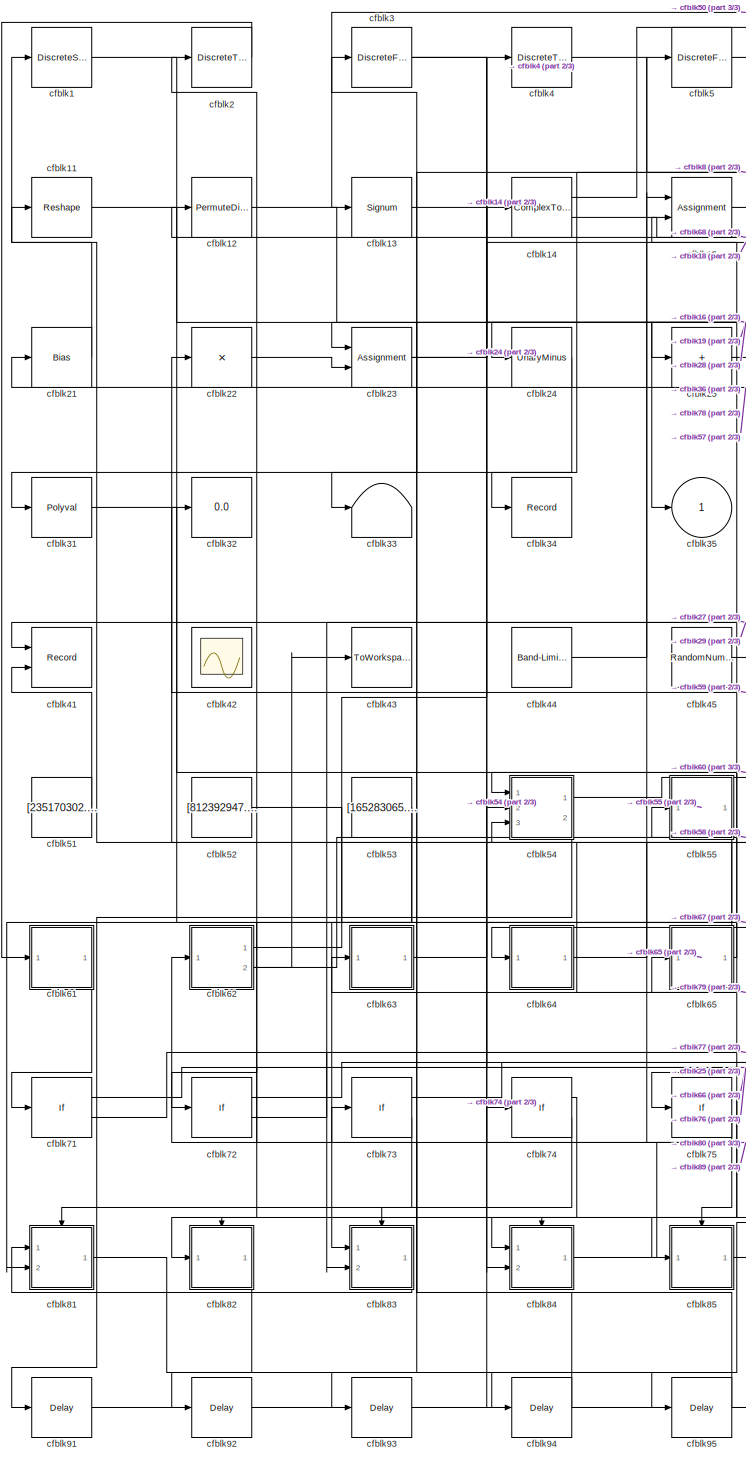
[diagram: root canvas - part 1/3, left side, full height]
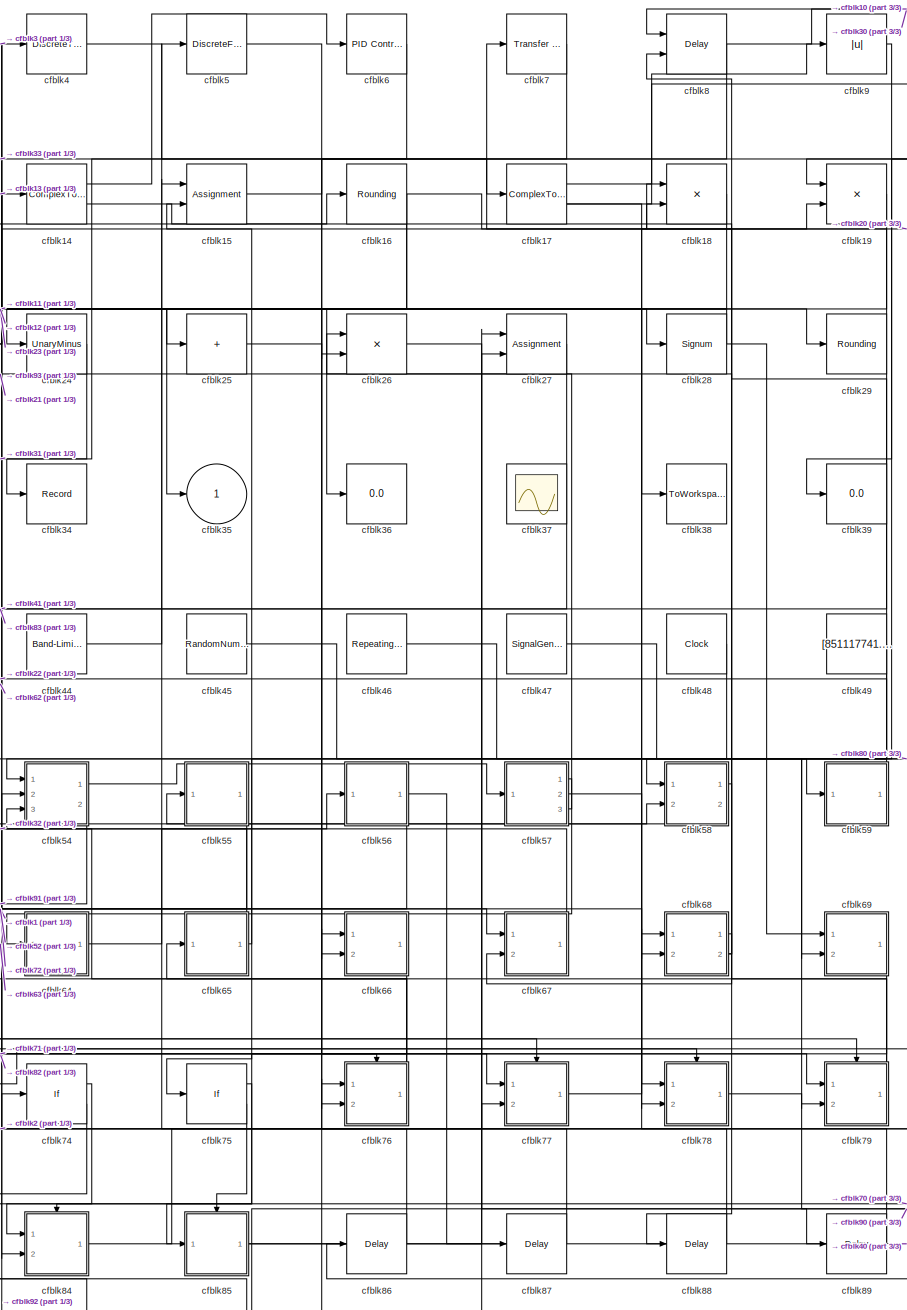
[diagram: root canvas - part 2/3, center side, full height]
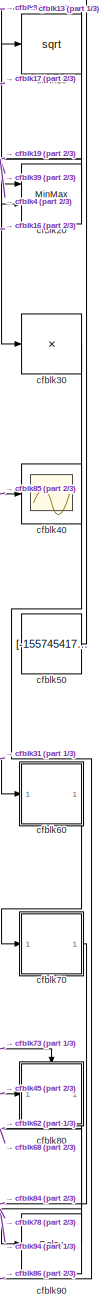
[diagram: root canvas - part 3/3, right side, full height]
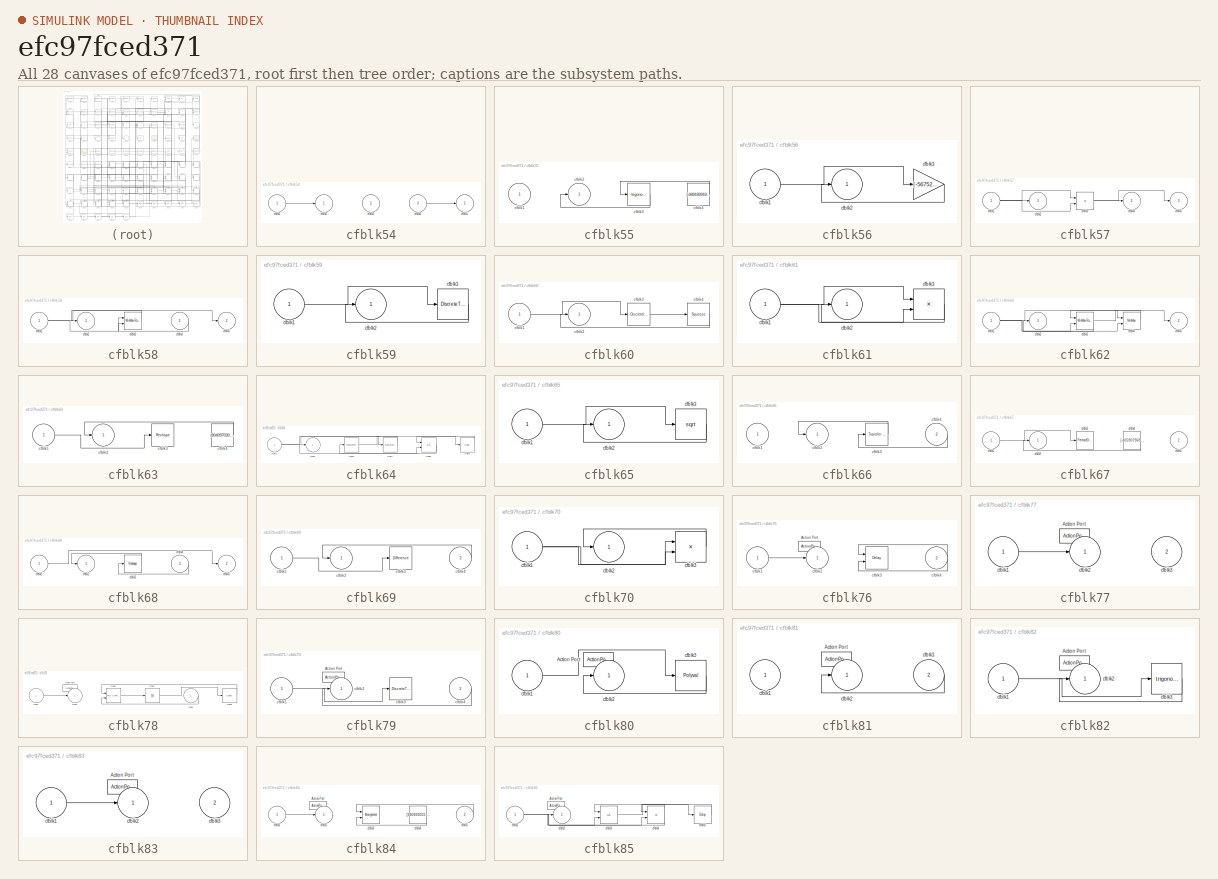
[diagram: thumbnail index - all 28 canvases of the model, root first then tree order]
MODEL slx_efc97fced371
KIND model
CONFIG AbsTol = auto
CONFIG EnableMultiTasking = off
CONFIG FixedStep = auto
CONFIG MaxStep = auto
CONFIG MinStep = auto
CONFIG RelTol = 1e-3
CONFIG SampleTimeConstraint = Unconstrained
CONFIG SolverName = VariableStepAuto
CONFIG StartTime = 0.0
CONFIG StopTime = 10.0
BLOCK [DiscreteStateSpace] cfblk1
BLOCK [Sqrt] cfblk10
BLOCK [Reshape] cfblk11
  Ports = [1, 1]
BLOCK [PermuteDimensions] cfblk12
BLOCK [Signum] cfblk13
BLOCK [ComplexToRealImag] cfblk14
  Ports = [1, 2]
BLOCK [Assignment] cfblk15
  DiagnosticForDimensions = Warning
  IndexOptions = Index vector (dialog)
  Indices = 1
  OutputSizes = 1
  Ports = [2, 1]
BLOCK [Rounding] cfblk16
BLOCK [ComplexToMagnitudeAngle] cfblk17
  Ports = [1, 2]
BLOCK [Product] cfblk18
  Ports = [2, 1]
BLOCK [Product] cfblk19
  Ports = [2, 1]
BLOCK [DiscreteTransferFcn] cfblk2
  InputPortMap = u0
  Ports = [1, 1]
  SampleTime = 1
BLOCK [MinMax] cfblk20
  Function = max
  Inputs = 2
  Ports = [2, 1]
BLOCK [Bias] cfblk21
  Bias = [805457734.016898]
  SaturateOnIntegerOverflow = off
BLOCK [Product] cfblk22
  Inputs = *
  Ports = [1, 1]
BLOCK [Assignment] cfblk23
  DiagnosticForDimensions = Warning
  IndexOptions = Index vector (dialog)
  Indices = 1
  OutputSizes = 1
  Ports = [2, 1]
BLOCK [UnaryMinus] cfblk24
BLOCK [Sum] cfblk25
  IconShape = rectangular
  Inputs = +
  Ports = [1, 1]
BLOCK [Product] cfblk26
  Inputs = **
  Ports = [2, 1]
BLOCK [Assignment] cfblk27
  DiagnosticForDimensions = Warning
  IndexOptions = Index vector (dialog)
  Indices = 1
  OutputSizes = 1
  Ports = [2, 1]
BLOCK [Signum] cfblk28
BLOCK [Rounding] cfblk29
BLOCK [DiscreteFir] cfblk3
  InputPortMap = u0
  OutputPortMap = o0
  Ports = [1, 1]
  SampleTime = 1
BLOCK [Product] cfblk30
  Inputs = *
  Ports = [1, 1]
BLOCK [Polyval] cfblk31
  Coefs = [ +2.081618890e-019, -1.441693666e-014, +4.719686976e-010, -8.536869453e-006, +1.621573104e-001, -8.087801117e+001 ]
BLOCK [Display] cfblk32
  Decimation = 1
  Ports = [1]
BLOCK [Terminator] cfblk33
BLOCK [Record] cfblk34
  FileSettingsInternal = {"entries":[{"content":{"excelSettings":{"content":{},"type":"Streamout.ExcelSettings"}},"type":"Streamout.FileSettingStorage","uuid":"10b3a829-3b43-40bf-bdec-2873be39b544"}],"packageUris":["http://schema.mathworks.com/mf0/streamout_blocks/R2020a"],"version":"1.0"}
  Ports = [1]
  SignalsInternal = {"entries":[{"content":{"signals":[{"content":{"blockPath":["sampleModel125/cfblk34"],"channel":[],"dimensions":[1],"domain":"sampleModel125/cfblk34","lineColor":"#4dbeee","plots":[1],"port":1,"sid":[""],"signalID":4407,"signalName":"cfblk6"},"type":"RecordBlkView.Signal","uuid":"dde6bba3-9d79-403d-9fee-fe8c637f291d"}]},"type":"RecordBlkView.InputSignals","uuid":"595af941-56f7-477e-9f25-0f9a9aec73...<+96ch>
  VisualizationBindings = {"sparklinesplugin":{"info":[{"bindingParametersList":[],"subplotID":1}]}}
BLOCK [Outport] cfblk35
BLOCK [Display] cfblk36
  Decimation = 1
  Ports = [1]
BLOCK [Scope] cfblk37
  Floating = on
  NumInputPorts = 1
  Ports = []
BLOCK [ToWorkspace] cfblk38
  FixptAsFi = on
  MaxDataPoints = inf
  Ports = [1]
  SampleTime = -1
  SaveFormat = Timeseries
  VariableName = kpebruq
BLOCK [Display] cfblk39
  Decimation = 1
  Ports = [1]
BLOCK [DiscreteTransferFcn] cfblk4
  InputPortMap = u0
  Ports = [1, 1]
  SampleTime = 1
BLOCK [Scope] cfblk40
  Floating = off
  NumInputPorts = 1
  Ports = [1]
BLOCK [Record] cfblk41
  CompatibilityTag = XY
  FileSettingsInternal = {"entries":[{"content":{"excelSettings":{"content":{},"type":"Streamout.ExcelSettings"}},"type":"Streamout.FileSettingStorage","uuid":"c1591aa4-c251-4cb9-a9b5-7e1959374f39"}],"packageUris":["http://schema.mathworks.com/mf0/streamout_blocks/R2020a"],"version":"1.0"}
  Layout = [1 1]
  Ports = [2]
  SignalsInternal = {"entries":[{"content":{"signals":[{"content":{"blockPath":["sampleModel125/cfblk41"],"channel":[],"dimensions":[1],"domain":"sampleModel125/cfblk41","lineColor":"#a2142f","plots":[1],"port":1,"sid":[""],"signalID":4411,"signalName":"cfblk27"},"type":"RecordBlkView.Signal","uuid":"4e167d94-f253-4071-9bb9-3a192c00a069"},{"content":{"blockPath":["sampleModel125/cfblk41"],"channel":[],"dimensions":[1...<+383ch>
  VisualizationBindings = {"xyplotplugin":{"info":[{"series":[{"bindingParametersList":[{"parameter":"X-Axis","signalID":4411,"signalName":"cfblk27"},{"parameter":"Y-Axis","signalID":4415,"signalName":"cfblk51"}],"seriesID":13289}],"subplotID":1}]}}
BLOCK [Scope] cfblk42
  Floating = on
  NumInputPorts = 1
  Ports = []
BLOCK [ToWorkspace] cfblk43
  FixptAsFi = on
  MaxDataPoints = inf
  Ports = [1]
  SampleTime = -1
  SaveFormat = Timeseries
  VariableName = qmubaad
BLOCK [Reference] cfblk44  REF=simulink/Sources/Band-Limited
White Noise
  Ports = [0, 1]
  SourceBlock = simulink/Sources/Band-Limited\nWhite Noise
  SourceProductBaseCode = SL
  SourceType = Band-Limited White Noise.
BLOCK [RandomNumber] cfblk45
  Mean = [-77643.430435]
  SampleTime = 0.1
  Seed = [977465673.000000]
  Variance = [89785.458999]
BLOCK [Reference] cfblk46  REF=simulink/Sources/Repeating
Sequence
Interpolated
  Ports = [0, 1]
  SourceBlock = simulink/Sources/Repeating\nSequence\nInterpolated
  SourceProductBaseCode = SL
  SourceType = Repeating Sequence Interpolated
BLOCK [SignalGenerator] cfblk47
  Amplitude = [910429593.160431]
  Ports = [0, 1]
BLOCK [Clock] cfblk48
BLOCK [Constant] cfblk49
  SampleTime = 1
  Value = [851117741.386390]
BLOCK [DiscreteFir] cfblk5
  InputPortMap = u0
  OutputPortMap = o0
  Ports = [1, 1]
  SampleTime = 1
BLOCK [Constant] cfblk50
  SampleTime = 1
  Value = [-155745417.798116]
BLOCK [Constant] cfblk51
  SampleTime = 1
  Value = [235170302.838405]
BLOCK [Constant] cfblk52
  SampleTime = 1
  Value = [812392947.582195]
BLOCK [Constant] cfblk53
  SampleTime = 1
  Value = [165283065.150022]
BLOCK [SubSystem] cfblk54
  Ports = [3, 2]
  RequestExecContextInheritance = off
BLOCK [Inport] cfblk54/cfblk1
BLOCK [Outport] cfblk54/cfblk2
BLOCK [Inport] cfblk54/cfblk3
  Port = 2
BLOCK [Inport] cfblk54/cfblk4
  Port = 3
BLOCK [Outport] cfblk54/cfblk5
  Port = 2
BLOCK [SubSystem] cfblk55
  Ports = [1, 1]
  RequestExecContextInheritance = off
BLOCK [Inport] cfblk55/cfblk1
BLOCK [Outport] cfblk55/cfblk2
BLOCK [Trigonometry] cfblk55/cfblk3
  Ports = [1, 1]
BLOCK [Constant] cfblk55/cfblk4
  SampleTime = 1
  Value = [-689189918.602560]
BLOCK [SubSystem] cfblk56
  Ports = [1, 1]
  RequestExecContextInheritance = off
BLOCK [Inport] cfblk56/cfblk1
BLOCK [Outport] cfblk56/cfblk2
BLOCK [Gain] cfblk56/cfblk3
  Gain = [-567529221.221164]
BLOCK [SubSystem] cfblk57
  Ports = [1, 3]
  RequestExecContextInheritance = off
BLOCK [Inport] cfblk57/cfblk1
BLOCK [Outport] cfblk57/cfblk2
BLOCK [Product] cfblk57/cfblk3
  Ports = [2, 1]
BLOCK [Outport] cfblk57/cfblk4
  Port = 2
BLOCK [Outport] cfblk57/cfblk5
  Port = 3
BLOCK [SubSystem] cfblk58
  Ports = [2, 2]
  RequestExecContextInheritance = off
BLOCK [Inport] cfblk58/cfblk1
BLOCK [Outport] cfblk58/cfblk2
BLOCK [Reference] cfblk58/cfblk3  REF=simulink/Math
Operations/MinMax
Running
Resettable
  Ports = [2, 1]
  SourceBlock = simulink/Math\nOperations/MinMax\nRunning\nResettable
  SourceProductBaseCode = SL
  SourceType = MinMax Running Resettable
BLOCK [Inport] cfblk58/cfblk4
  Port = 2
BLOCK [Outport] cfblk58/cfblk5
  Port = 2
BLOCK [SubSystem] cfblk59
  Ports = [1, 1]
  RequestExecContextInheritance = off
BLOCK [Inport] cfblk59/cfblk1
BLOCK [Outport] cfblk59/cfblk2
BLOCK [DiscreteTransferFcn] cfblk59/cfblk3
  InputPortMap = u0
  Ports = [1, 1]
  SampleTime = 1
BLOCK [Reference] cfblk6  REF=slpidlib/PID Controller
  Ports = [1, 1]
  SourceBlock = slpidlib/PID Controller
  SourceProductBaseCode = SL
  SourceType = PID 1dof
BLOCK [SubSystem] cfblk60
  Ports = [1, 1]
  RequestExecContextInheritance = off
BLOCK [Inport] cfblk60/cfblk1
BLOCK [Outport] cfblk60/cfblk2
BLOCK [DiscreteIntegrator] cfblk60/cfblk3
  ICPrevOutput = DiscIntNeverNeededParam
  ICPrevScaledInput = DiscIntNeverNeededParam
  InitialConditionSetting = Auto
  Ports = [1, 1]
BLOCK [Squeeze] cfblk60/cfblk4
BLOCK [SubSystem] cfblk61
  Ports = [1, 1]
  RequestExecContextInheritance = off
BLOCK [Inport] cfblk61/cfblk1
BLOCK [Outport] cfblk61/cfblk2
BLOCK [Product] cfblk61/cfblk3
  Inputs = **
  Ports = [2, 1]
BLOCK [SubSystem] cfblk62
  Ports = [1, 2]
  RequestExecContextInheritance = off
BLOCK [Inport] cfblk62/cfblk1
BLOCK [Outport] cfblk62/cfblk2
BLOCK [Reference] cfblk62/cfblk3  REF=simulink/Math
Operations/MinMax
Running
Resettable
  Ports = [2, 1]
  SourceBlock = simulink/Math\nOperations/MinMax\nRunning\nResettable
  SourceProductBaseCode = SL
  SourceType = MinMax Running Resettable
BLOCK [MinMax] cfblk62/cfblk4
  Inputs = 2
  Ports = [2, 1]
BLOCK [Outport] cfblk62/cfblk5
  Port = 2
BLOCK [SubSystem] cfblk63
  Ports = [1, 1]
  RequestExecContextInheritance = off
BLOCK [Inport] cfblk63/cfblk1
BLOCK [Outport] cfblk63/cfblk2
BLOCK [Reshape] cfblk63/cfblk3
  Ports = [1, 1]
BLOCK [Constant] cfblk63/cfblk4
  SampleTime = 1
  Value = [804097030.204221]
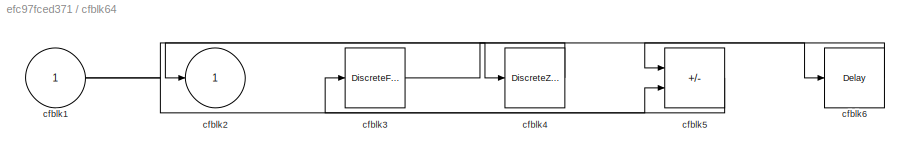
BLOCK [SubSystem] cfblk64
  Ports = [1, 1]
  RequestExecContextInheritance = off
BLOCK [Inport] cfblk64/cfblk1
BLOCK [Outport] cfblk64/cfblk2
BLOCK [DiscreteFilter] cfblk64/cfblk3
  InputPortMap = u0
  Ports = [1, 1]
  SampleTime = 1
BLOCK [DiscreteZeroPole] cfblk64/cfblk4
  Gain = 1
  Poles = [0 0.5]
BLOCK [Sum] cfblk64/cfblk5
  IconShape = rectangular
  Inputs = +-
  Ports = [2, 1]
BLOCK [Delay] cfblk64/cfblk6
  InputPortMap = u0
  Ports = [1, 1]
  SampleTime = 1
BLOCK [SubSystem] cfblk65
  Ports = [1, 1]
  RequestExecContextInheritance = off
BLOCK [Inport] cfblk65/cfblk1
BLOCK [Outport] cfblk65/cfblk2
BLOCK [Sqrt] cfblk65/cfblk3
BLOCK [SubSystem] cfblk66
  Ports = [2, 1]
  RequestExecContextInheritance = off
BLOCK [Inport] cfblk66/cfblk1
BLOCK [Outport] cfblk66/cfblk2
BLOCK [Reference] cfblk66/cfblk3  REF=simulink/Discrete/Transfer Fcn
Lead or Lag
  Ports = [1, 1]
  SourceBlock = simulink/Discrete/Transfer Fcn\nLead or Lag
  SourceProductBaseCode = SL
  SourceType = Lead or Lag Compensator
BLOCK [Inport] cfblk66/cfblk4
  Port = 2
BLOCK [SubSystem] cfblk67
  Ports = [2, 1]
  RequestExecContextInheritance = off
BLOCK [Inport] cfblk67/cfblk1
BLOCK [Outport] cfblk67/cfblk2
BLOCK [PermuteDimensions] cfblk67/cfblk3
BLOCK [Constant] cfblk67/cfblk4
  SampleTime = 1
  Value = [-405907969.061184]
BLOCK [Inport] cfblk67/cfblk5
  Port = 2
BLOCK [SubSystem] cfblk68
  Ports = [2, 2]
  RequestExecContextInheritance = off
BLOCK [Inport] cfblk68/cfblk1
BLOCK [Outport] cfblk68/cfblk2
BLOCK [Reshape] cfblk68/cfblk3
  Ports = [1, 1]
BLOCK [Inport] cfblk68/cfblk4
  Port = 2
BLOCK [Outport] cfblk68/cfblk5
  Port = 2
BLOCK [SubSystem] cfblk69
  Ports = [2, 1]
  RequestExecContextInheritance = off
BLOCK [Inport] cfblk69/cfblk1
BLOCK [Outport] cfblk69/cfblk2
BLOCK [Reference] cfblk69/cfblk3  REF=simulink/Discrete/Difference
  Ports = [1, 1]
  SourceBlock = simulink/Discrete/Difference
  SourceProductBaseCode = SL
  SourceType = Difference
BLOCK [Inport] cfblk69/cfblk4
  Port = 2
BLOCK [Reference] cfblk7  REF=simulink/Discrete/Transfer Fcn
First Order
  Ports = [1, 1]
  SourceBlock = simulink/Discrete/Transfer Fcn\nFirst Order
  SourceProductBaseCode = SL
  SourceType = First Order Transfer Fcn
BLOCK [SubSystem] cfblk70
  Ports = [1, 1]
  RequestExecContextInheritance = off
BLOCK [Inport] cfblk70/cfblk1
BLOCK [Outport] cfblk70/cfblk2
BLOCK [Product] cfblk70/cfblk3
  Inputs = **
  Ports = [2, 1]
BLOCK [If] cfblk71
  IfExpression = u1 >= 0
  Ports = [1, 2]
  SampleTime = 1
BLOCK [If] cfblk72
  IfExpression = u1 >= 0
  Ports = [1, 2]
  SampleTime = 1
BLOCK [If] cfblk73
  IfExpression = u1 >= 0
  Ports = [1, 2]
  SampleTime = 1
BLOCK [If] cfblk74
  IfExpression = u1 >= 0
  Ports = [1, 2]
  SampleTime = 1
BLOCK [If] cfblk75
  IfExpression = u1 >= 0
  Ports = [1, 2]
  SampleTime = 1
BLOCK [SubSystem] cfblk76
  Ports = [2, 1, 0, 0, 0, 0, 0, 1]
  RequestExecContextInheritance = off
  TreatAsAtomicUnit = on
BLOCK [ActionPort] cfblk76/Action Port
  ActionPortLabel = if(u1 >= 0)
BLOCK [Inport] cfblk76/cfblk1
BLOCK [Outport] cfblk76/cfblk2
BLOCK [Delay] cfblk76/cfblk3
  InputPortMap = u0,e6
  Ports = [2, 1]
  ShowEnablePort = on
BLOCK [Inport] cfblk76/cfblk4
  Port = 2
BLOCK [SubSystem] cfblk77
  Ports = [2, 1, 0, 0, 0, 0, 0, 1]
  RequestExecContextInheritance = off
  TreatAsAtomicUnit = on
BLOCK [ActionPort] cfblk77/Action Port
  ActionPortLabel = else
BLOCK [Inport] cfblk77/cfblk1
BLOCK [Outport] cfblk77/cfblk2
BLOCK [Inport] cfblk77/cfblk3
  Port = 2
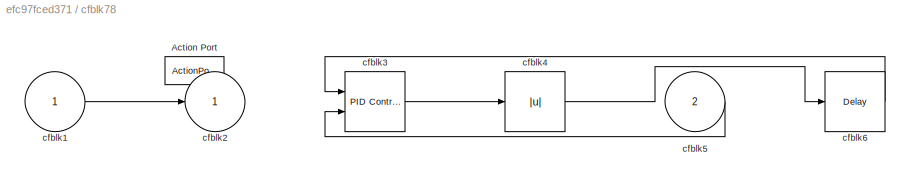
BLOCK [SubSystem] cfblk78
  Ports = [2, 1, 0, 0, 0, 0, 0, 1]
  RequestExecContextInheritance = off
  TreatAsAtomicUnit = on
BLOCK [ActionPort] cfblk78/Action Port
  ActionPortLabel = if(u1 >= 0)
BLOCK [Inport] cfblk78/cfblk1
BLOCK [Outport] cfblk78/cfblk2
BLOCK [Reference] cfblk78/cfblk3  REF=slpidlib/PID Controller (2DOF)
  Ports = [2, 1]
  SourceBlock = slpidlib/PID Controller (2DOF)
  SourceProductBaseCode = SL
  SourceType = PID 2dof
BLOCK [Abs] cfblk78/cfblk4
  SaturateOnIntegerOverflow = off
BLOCK [Inport] cfblk78/cfblk5
  Port = 2
BLOCK [Delay] cfblk78/cfblk6
  InputPortMap = u0
  Ports = [1, 1]
BLOCK [SubSystem] cfblk79
  Ports = [2, 1, 0, 0, 0, 0, 0, 1]
  RequestExecContextInheritance = off
  TreatAsAtomicUnit = on
BLOCK [ActionPort] cfblk79/Action Port
  ActionPortLabel = else
BLOCK [Inport] cfblk79/cfblk1
BLOCK [Outport] cfblk79/cfblk2
BLOCK [DiscreteTransferFcn] cfblk79/cfblk3
  InputPortMap = u0
  Ports = [1, 1]
BLOCK [Inport] cfblk79/cfblk4
  Port = 2
BLOCK [Delay] cfblk8
  InputPortMap = u0,e6
  Ports = [2, 1]
  SampleTime = 1
  ShowEnablePort = on
BLOCK [SubSystem] cfblk80
  Ports = [1, 1, 0, 0, 0, 0, 0, 1]
  RequestExecContextInheritance = off
  TreatAsAtomicUnit = on
BLOCK [ActionPort] cfblk80/Action Port
  ActionPortLabel = if(u1 >= 0)
BLOCK [Inport] cfblk80/cfblk1
BLOCK [Outport] cfblk80/cfblk2
BLOCK [Polyval] cfblk80/cfblk3
  Coefs = [ +2.081618890e-019, -1.441693666e-014, +4.719686976e-010, -8.536869453e-006, +1.621573104e-001, -8.087801117e+001 ]
BLOCK [SubSystem] cfblk81
  Ports = [2, 1, 0, 0, 0, 0, 0, 1]
  RequestExecContextInheritance = off
  TreatAsAtomicUnit = on
BLOCK [ActionPort] cfblk81/Action Port
  ActionPortLabel = else
BLOCK [Inport] cfblk81/cfblk1
BLOCK [Outport] cfblk81/cfblk2
BLOCK [Inport] cfblk81/cfblk3
  Port = 2
BLOCK [SubSystem] cfblk82
  Ports = [1, 1, 0, 0, 0, 0, 0, 1]
  RequestExecContextInheritance = off
  TreatAsAtomicUnit = on
BLOCK [ActionPort] cfblk82/Action Port
  ActionPortLabel = if(u1 >= 0)
BLOCK [Inport] cfblk82/cfblk1
BLOCK [Outport] cfblk82/cfblk2
BLOCK [Trigonometry] cfblk82/cfblk3
  Ports = [1, 1]
BLOCK [SubSystem] cfblk83
  Ports = [2, 1, 0, 0, 0, 0, 0, 1]
  RequestExecContextInheritance = off
  TreatAsAtomicUnit = on
BLOCK [ActionPort] cfblk83/Action Port
  ActionPortLabel = else
BLOCK [Inport] cfblk83/cfblk1
BLOCK [Outport] cfblk83/cfblk2
BLOCK [Inport] cfblk83/cfblk3
  Port = 2
BLOCK [SubSystem] cfblk84
  Ports = [2, 1, 0, 0, 0, 0, 0, 1]
  RequestExecContextInheritance = off
  TreatAsAtomicUnit = on
BLOCK [ActionPort] cfblk84/Action Port
  ActionPortLabel = if(u1 >= 0)
BLOCK [Inport] cfblk84/cfblk1
BLOCK [Outport] cfblk84/cfblk2
BLOCK [Assignment] cfblk84/cfblk3
  DiagnosticForDimensions = Warning
  IndexOptions = Index vector (dialog)
  Indices = 1
  OutputSizes = 1
  Ports = [2, 1]
BLOCK [Constant] cfblk84/cfblk4
  SampleTime = 1
  Value = [390993055.772194]
BLOCK [Inport] cfblk84/cfblk5
  Port = 2
BLOCK [SubSystem] cfblk85
  Ports = [1, 1, 0, 0, 0, 0, 0, 1]
  RequestExecContextInheritance = off
  TreatAsAtomicUnit = on
BLOCK [ActionPort] cfblk85/Action Port
  ActionPortLabel = else
BLOCK [Inport] cfblk85/cfblk1
BLOCK [Outport] cfblk85/cfblk2
BLOCK [Sum] cfblk85/cfblk3
  IconShape = rectangular
  Inputs = +-
  Ports = [2, 1]
BLOCK [Product] cfblk85/cfblk4
  Inputs = **
  Ports = [2, 1]
BLOCK [Delay] cfblk85/cfblk5
  InputPortMap = u0
  Ports = [1, 1]
BLOCK [Delay] cfblk86
  InputPortMap = u0
  Ports = [1, 1]
  SampleTime = 1
BLOCK [Delay] cfblk87
  InputPortMap = u0
  Ports = [1, 1]
  SampleTime = 1
BLOCK [Delay] cfblk88
  InputPortMap = u0
  Ports = [1, 1]
  SampleTime = 1
BLOCK [Delay] cfblk89
  InputPortMap = u0
  Ports = [1, 1]
  SampleTime = 1
BLOCK [Abs] cfblk9
  SaturateOnIntegerOverflow = off
BLOCK [Delay] cfblk90
  InputPortMap = u0
  Ports = [1, 1]
  SampleTime = 1
BLOCK [Delay] cfblk91
  InputPortMap = u0
  Ports = [1, 1]
  SampleTime = 1
BLOCK [Delay] cfblk92
  InputPortMap = u0
  Ports = [1, 1]
  SampleTime = 1
BLOCK [Delay] cfblk93
  InputPortMap = u0
  Ports = [1, 1]
  SampleTime = 1
BLOCK [Delay] cfblk94
  InputPortMap = u0
  Ports = [1, 1]
  SampleTime = 1
BLOCK [Delay] cfblk95
  InputPortMap = u0
  Ports = [1, 1]
  SampleTime = 1
NET cfblk10:1 -> cfblk39:1, cfblk8:1
LINE cfblk11:1 -> cfblk36:1
LINE cfblk12:1 -> cfblk78:1
LINE cfblk13:1 -> cfblk29:1
LINE cfblk14:1 -> cfblk6:1
LINE cfblk14:2 -> cfblk16:1
LINE cfblk15:1 -> cfblk17:1
NET cfblk16:1 -> cfblk20:2, cfblk26:2, cfblk93:1
LINE cfblk17:1 -> cfblk10:1
NET cfblk17:2 -> cfblk38:1, cfblk9:1
LINE cfblk18:1 -> cfblk35:1
LINE cfblk19:1 -> cfblk23:1
LINE cfblk1:1 -> cfblk67:1
LINE cfblk20:1 -> cfblk19:1
LINE cfblk21:1 -> cfblk1:1
LINE cfblk22:1 -> cfblk23:2
NET cfblk23:1 -> cfblk18:2, cfblk28:1
LINE cfblk24:1 -> cfblk31:1
LINE cfblk25:1 -> cfblk66:2
LINE cfblk26:1 -> cfblk89:1
LINE cfblk27:1 -> cfblk41:1
NET cfblk28:1 -> cfblk24:1, cfblk69:1
NET cfblk29:1 -> cfblk7:1, cfblk83:2
LINE cfblk2:1 -> cfblk61:1
LINE cfblk30:1 -> cfblk86:1
LINE cfblk31:1 -> cfblk60:1
NET cfblk3:1 -> cfblk25:1, cfblk79:1
LINE cfblk44:1 -> cfblk5:1
LINE cfblk45:1 -> cfblk80:1
LINE cfblk46:1 -> cfblk79:2
LINE cfblk47:1 -> cfblk59:1
LINE cfblk48:1 -> cfblk75:1
NET cfblk49:1 -> cfblk58:1, cfblk69:2, cfblk8:2
LINE cfblk4:1 -> cfblk20:1
LINE cfblk50:1 -> cfblk13:1
LINE cfblk51:1 -> cfblk41:2
LINE cfblk52:1 -> cfblk78:2
NET cfblk53:1 -> cfblk81:2, cfblk83:1
LINE cfblk54/cfblk1:1 -> cfblk54/cfblk2:1
LINE cfblk54/cfblk4:1 -> cfblk54/cfblk5:1
LINE cfblk54:1 -> cfblk57:1
LINE cfblk54:2 -> cfblk91:1
LINE cfblk55/cfblk3:1 -> cfblk55/cfblk2:1
LINE cfblk55/cfblk4:1 -> cfblk55/cfblk3:1
LINE cfblk55:1 -> cfblk72:1
LINE cfblk56/cfblk1:1 -> cfblk56/cfblk3:1
LINE cfblk56/cfblk3:1 -> cfblk56/cfblk2:1
NET cfblk56:1 -> cfblk84:2, cfblk87:1
NET cfblk57/cfblk1:1 -> cfblk57/cfblk2:1, cfblk57/cfblk3:1, cfblk57/cfblk3:2
NET cfblk57/cfblk3:1 -> cfblk57/cfblk4:1, cfblk57/cfblk5:1
LINE cfblk57:1 -> cfblk64:1
LINE cfblk57:2 -> cfblk68:2
LINE cfblk57:3 -> cfblk21:1
NET cfblk58/cfblk1:1 -> cfblk58/cfblk3:2, cfblk58/cfblk5:1
LINE cfblk58/cfblk3:1 -> cfblk58/cfblk2:1
LINE cfblk58/cfblk4:1 -> cfblk58/cfblk3:1
LINE cfblk58:1 -> cfblk67:2
LINE cfblk58:2 -> cfblk55:1
LINE cfblk59/cfblk1:1 -> cfblk59/cfblk3:1
LINE cfblk59/cfblk3:1 -> cfblk59/cfblk2:1
LINE cfblk59:1 -> cfblk22:1
LINE cfblk5:1 -> cfblk77:1
LINE cfblk60/cfblk1:1 -> cfblk60/cfblk3:1
LINE cfblk60/cfblk3:1 -> cfblk60/cfblk4:1
LINE cfblk60/cfblk4:1 -> cfblk60/cfblk2:1
LINE cfblk60:1 -> cfblk70:1
NET cfblk61/cfblk1:1 -> cfblk61/cfblk3:1, cfblk61/cfblk3:2
LINE cfblk61/cfblk3:1 -> cfblk61/cfblk2:1
LINE cfblk61:1 -> cfblk71:1
NET cfblk62/cfblk1:1 -> cfblk62/cfblk3:2, cfblk62/cfblk4:1, cfblk62/cfblk4:2
NET cfblk62/cfblk3:1 -> cfblk62/cfblk2:1, cfblk62/cfblk5:1
LINE cfblk62/cfblk4:1 -> cfblk62/cfblk3:1
LINE cfblk62:1 -> cfblk14:1
NET cfblk62:2 -> cfblk43:1, cfblk58:2
LINE cfblk63/cfblk1:1 -> cfblk63/cfblk3:1
LINE cfblk63/cfblk4:1 -> cfblk63/cfblk2:1
LINE cfblk63:1 -> cfblk4:1
NET cfblk64/cfblk1:1 -> cfblk64/cfblk4:1, cfblk64/cfblk5:2
LINE cfblk64/cfblk3:1 -> cfblk64/cfblk6:1
LINE cfblk64/cfblk4:1 -> cfblk64/cfblk2:1
LINE cfblk64/cfblk5:1 -> cfblk64/cfblk3:1
LINE cfblk64/cfblk6:1 -> cfblk64/cfblk5:1
LINE cfblk64:1 -> cfblk56:1
LINE cfblk65/cfblk1:1 -> cfblk65/cfblk3:1
LINE cfblk65/cfblk3:1 -> cfblk65/cfblk2:1
NET cfblk65:1 -> cfblk11:1, cfblk15:2
LINE cfblk66/cfblk3:1 -> cfblk66/cfblk2:1
LINE cfblk66/cfblk4:1 -> cfblk66/cfblk3:1
LINE cfblk66:1 -> cfblk82:1
LINE cfblk67/cfblk1:1 -> cfblk67/cfblk3:1
LINE cfblk67/cfblk4:1 -> cfblk67/cfblk2:1
LINE cfblk67:1 -> cfblk32:1
LINE cfblk68/cfblk1:1 -> cfblk68/cfblk5:1
LINE cfblk68/cfblk3:1 -> cfblk68/cfblk2:1
LINE cfblk68/cfblk4:1 -> cfblk68/cfblk3:1
LINE cfblk68:1 -> cfblk88:1
NET cfblk68:2 -> cfblk12:1, cfblk26:1
LINE cfblk69/cfblk1:1 -> cfblk69/cfblk3:1
LINE cfblk69/cfblk4:1 -> cfblk69/cfblk2:1
LINE cfblk69:1 -> cfblk85:1
LINE cfblk6:1 -> cfblk34:1
NET cfblk70/cfblk1:1 -> cfblk70/cfblk3:1, cfblk70/cfblk3:2
LINE cfblk70/cfblk3:1 -> cfblk70/cfblk2:1
LINE cfblk70:1 -> cfblk84:1
LINE cfblk71:1 -> cfblk76:ifaction
LINE cfblk71:2 -> cfblk77:ifaction
LINE cfblk72:1 -> cfblk78:ifaction
LINE cfblk72:2 -> cfblk79:ifaction
LINE cfblk73:1 -> cfblk80:ifaction
LINE cfblk73:2 -> cfblk81:ifaction
LINE cfblk74:1 -> cfblk82:ifaction
LINE cfblk74:2 -> cfblk83:ifaction
LINE cfblk75:1 -> cfblk84:ifaction
LINE cfblk75:2 -> cfblk85:ifaction
LINE cfblk76/cfblk1:1 -> cfblk76/cfblk2:1
NET cfblk76/cfblk4:1 -> cfblk76/cfblk3:1, cfblk76/cfblk3:2
NET cfblk76:1 -> cfblk54:3, cfblk65:1
LINE cfblk77/cfblk1:1 -> cfblk77/cfblk2:1
LINE cfblk77:1 -> cfblk19:2
LINE cfblk78/cfblk1:1 -> cfblk78/cfblk2:1
LINE cfblk78/cfblk3:1 -> cfblk78/cfblk4:1
LINE cfblk78/cfblk4:1 -> cfblk78/cfblk6:1
LINE cfblk78/cfblk5:1 -> cfblk78/cfblk3:2
LINE cfblk78/cfblk6:1 -> cfblk78/cfblk3:1
LINE cfblk78:1 -> cfblk90:1
LINE cfblk79/cfblk1:1 -> cfblk79/cfblk3:1
LINE cfblk79/cfblk4:1 -> cfblk79/cfblk2:1
NET cfblk79:1 -> cfblk18:1, cfblk63:1
LINE cfblk7:1 -> cfblk76:2
LINE cfblk80/cfblk1:1 -> cfblk80/cfblk3:1
LINE cfblk80/cfblk3:1 -> cfblk80/cfblk2:1
NET cfblk80:1 -> cfblk62:1, cfblk94:1
LINE cfblk81/cfblk3:1 -> cfblk81/cfblk2:1
LINE cfblk81:1 -> cfblk95:1
LINE cfblk82/cfblk1:1 -> cfblk82/cfblk3:1
LINE cfblk82/cfblk3:1 -> cfblk82/cfblk2:1
LINE cfblk82:1 -> cfblk92:1
LINE cfblk83/cfblk1:1 -> cfblk83/cfblk2:1
LINE cfblk83:1 -> cfblk81:1
LINE cfblk84/cfblk1:1 -> cfblk84/cfblk2:1
LINE cfblk84/cfblk4:1 -> cfblk84/cfblk3:2
LINE cfblk84/cfblk5:1 -> cfblk84/cfblk3:1
LINE cfblk84:1 -> cfblk27:2
NET cfblk85/cfblk1:1 -> cfblk85/cfblk3:2, cfblk85/cfblk4:2
LINE cfblk85/cfblk3:1 -> cfblk85/cfblk5:1
NET cfblk85/cfblk4:1 -> cfblk85/cfblk2:1, cfblk85/cfblk3:1
LINE cfblk85/cfblk5:1 -> cfblk85/cfblk4:1
NET cfblk85:1 -> cfblk27:1, cfblk40:1
LINE cfblk86:1 -> cfblk76:1
LINE cfblk87:1 -> cfblk15:1
LINE cfblk88:1 -> cfblk54:2
LINE cfblk89:1 -> cfblk2:1
NET cfblk8:1 -> cfblk30:1, cfblk33:1
LINE cfblk90:1 -> cfblk68:1
LINE cfblk91:1 -> cfblk77:2
LINE cfblk92:1 -> cfblk74:1
LINE cfblk93:1 -> cfblk66:1
LINE cfblk94:1 -> cfblk3:1
LINE cfblk95:1 -> cfblk73:1
LINE cfblk9:1 -> cfblk54:1
note: NET lines group one-source signal fan-out (src -> all destinations, sorted); 1:1 wires keep LINE
